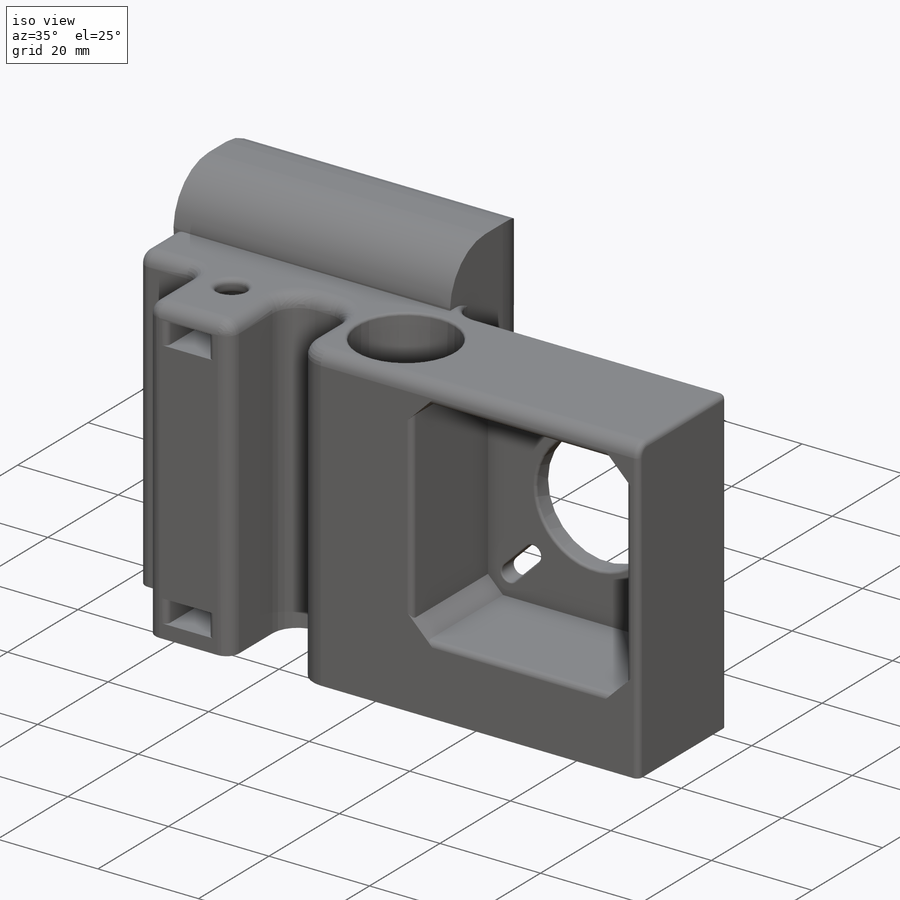
[diagram: iso view]
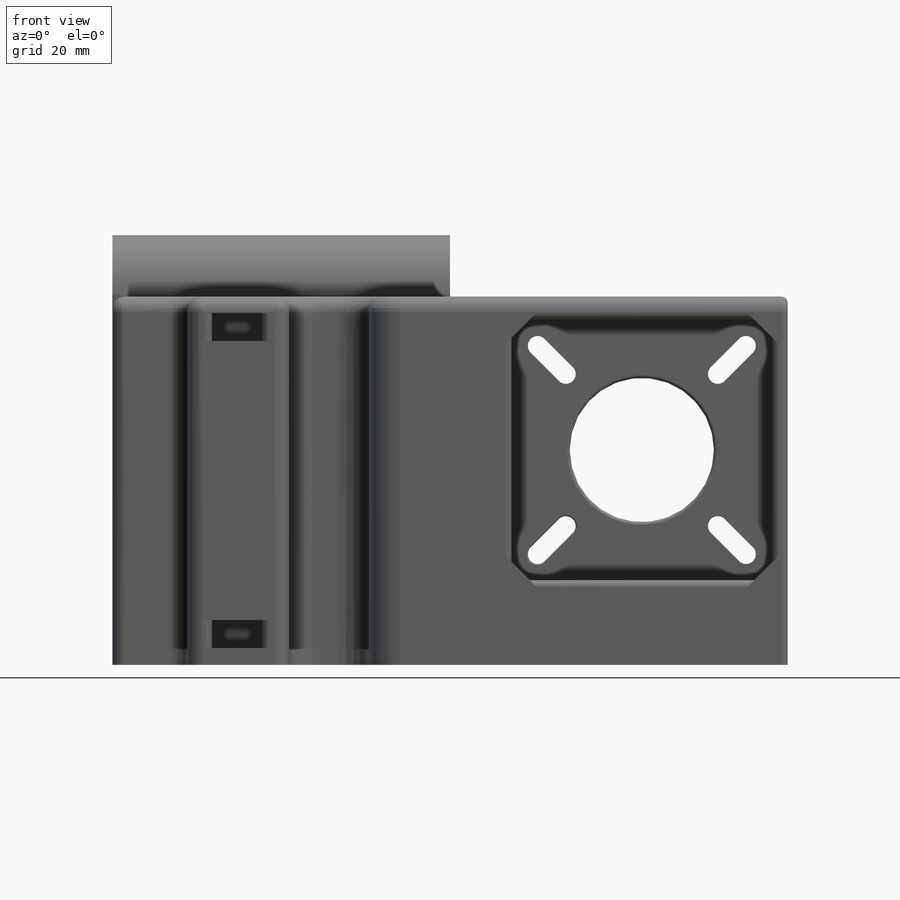
[diagram: front view]
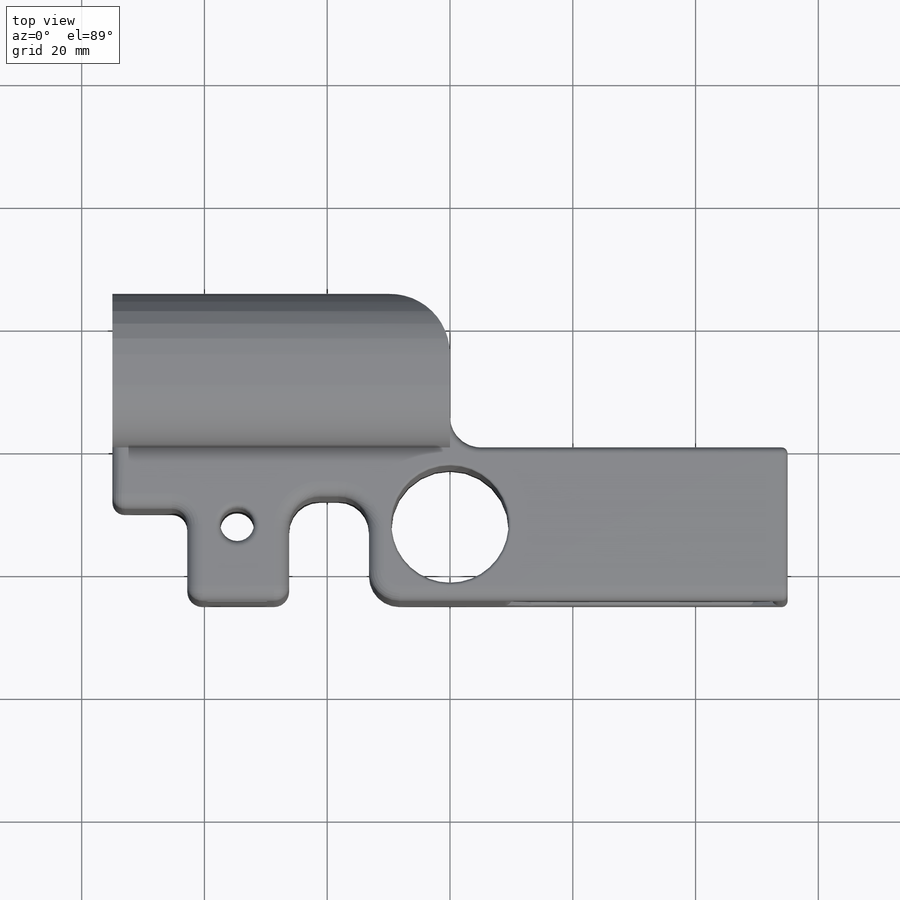
[diagram: top view]
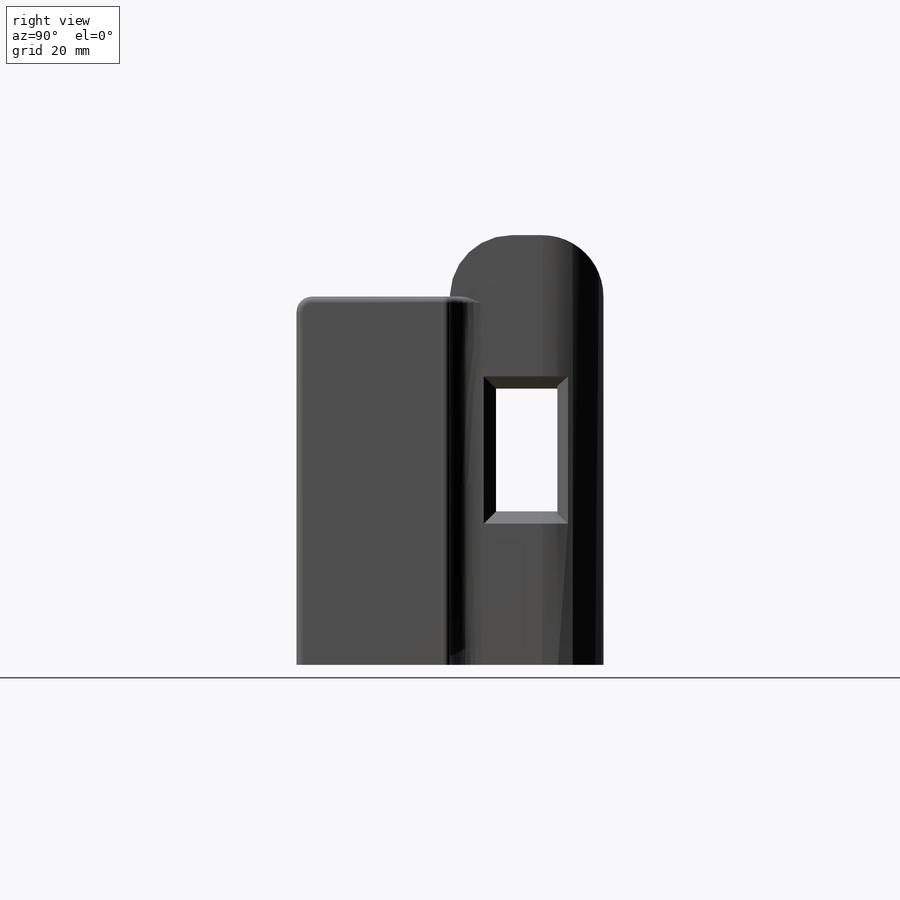
[diagram: right view]
SOLIDWORKS PART (.sldprt)
format: sldprt  version: not decoded by parser v0  size: 897,024 bytes
history: native  units: mm
features: fillet x18, sketch x14, cut_extrude x9, extrude x5, chamfer x2, material x1 (+13 scaffold rows collapsed)
feature tree (62):
  scaffold x13  (default folders/planes/origin — collapsed)
  material  "Material <not specified>"
  sketch  "Sketch1"  dims[D1=110.0mm D2=50.0mm]
  extrude  "Boss-Extrude1"  Depth=25mm
  sketch  "Sketch3"  dims[D1=42.5mm D2=42.5mm D3=2.5mm]
  cut_extrude  "Cut-Extrude2"  Depth=21.5mm
  sketch  "Sketch4"
  extrude  "Boss-Extrude2"  Depth=25mm
  sketch  "Sketch5"  dims[c1.D1=10.1mm c1.D2=10.1mm c1.D3=25.0mm c1.D4=25.0mm c2.D3=45.0mm c2.D4=22.5mm]
  sketch  "Sketch6"
  extrude  "Boss-Extrude3"  Depth=10mm
  sketch  "Sketch7"
  extrude  "Boss-Extrude4"  Depth=10mm
  cut_extrude  "Cut-Extrude3"  Depth=30mm
  sketch  "Sketch8"  dims[D1=20.0mm D2=10.0mm]
  cut_extrude  "Cut-Extrude4"  [1 undecoded]
  fillet  "Fillet1"  Radius=5mm
  chamfer  "Chamfer3"  Distance=3mm Angle=45deg
  sketch  "Sketch11"  dims[c1.D1=23.5mm c1.D6=3.2mm c1.D7=3.2mm c1.D8=3.2mm c1.D9=3.2mm c2.D6=~2.040407mm c2.D7=~2.183355mm c2.D2=1.6mm c2.D3=1.6mm c3.D2=4.81mm c3.D3=4.81mm c3.D4=4.81mm c3.D5=4.81mm c3.D6=6.5mm c3.D7=6.5mm c4.D4=6.5mm c4.D5=6.5mm c4.D8=15.0mm c4.D9=15.0mm c5.D8=17.5mm c5.D9=17.5mm]
  cut_extrude  "Cut-Extrude5"  [1 undecoded]
  sketch  "Sketch12"
  extrude  "Boss-Extrude5"  [1 undecoded]
  sketch  "Sketch2"  dims[D1=19.1mm D2=5.5mm D3=34.68mm D4=20.32mm D5=12.5mm]
  cut_extrude  "Cut-Extrude1"  Depth=75mm
  sketch  "Sketch14"  dims[D1=20.32mm D2=5.0mm D3=8.25mm D4=8.25mm D5=4.5mm D6=4.5mm]
  cut_extrude  "Cut-Extrude6"  Depth=17.25mm
  fillet  "Fillet2"  Radius=10mm
  chamfer  "Chamfer4"  Distance=2mm Angle=45deg
  fillet  "Fillet4"  Radius=0.5mm
  fillet  "Fillet6"  Radius=0.5mm
  fillet  "Fillet7"  Radius=1mm
  fillet  "Fillet8"  Radius=0.2mm
  fillet  "Fillet9"  Radius=1mm
  fillet  "Fillet10"  Radius=1mm
  fillet  "Fillet12"  Radius=5mm
  sketch  "Mobious Logo"
  cut_extrude  "Cut-Extrude7"  Depth=1mm
  sketch  "Sketch15"  dims[D1=13.0mm D2=13.0mm D3=17.0mm]
  cut_extrude  "Cut-Extrude8"  [1 undecoded]
  fillet  "Fillet13"  Radius=5mm
  sketch  "Sketch18"  dims[D1=4.0mm]
  cut_extrude  "Cut-Extrude10"  Depth=15mm
  fillet  "Fillet14"  Radius=2.5mm
  fillet  "Fillet15"  Radius=2.5mm
  fillet  "Fillet16"  Radius=2.5mm
  fillet  "Fillet17"  Radius=0.25mm
  fillet  "Fillet18"  Radius=2mm
  fillet  "Fillet19"  Radius=1mm
  fillet  "Fillet20"  Radius=1mm
  fillet  "Fillet21"  Radius=1mm
decode coverage: 39 of 48 modeling features carry decoded parameters
note: ~ marks probable driven/reference dimensions
note: 4 parameter values undecoded
summary: no parameter record found for 4 features
note: suppression state not decoded; provenance and decode notes live in map.json
